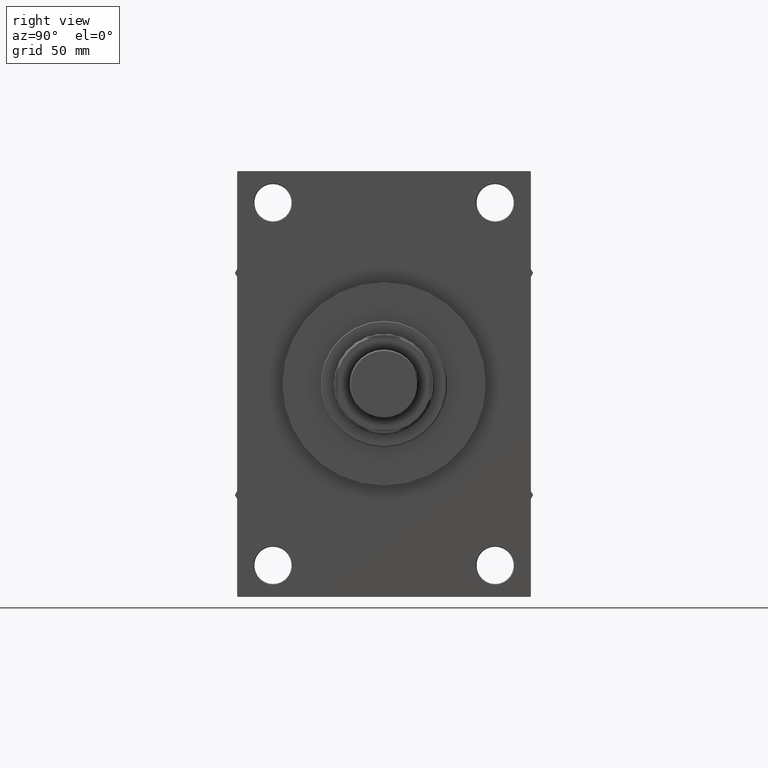
[diagram: clean part render]
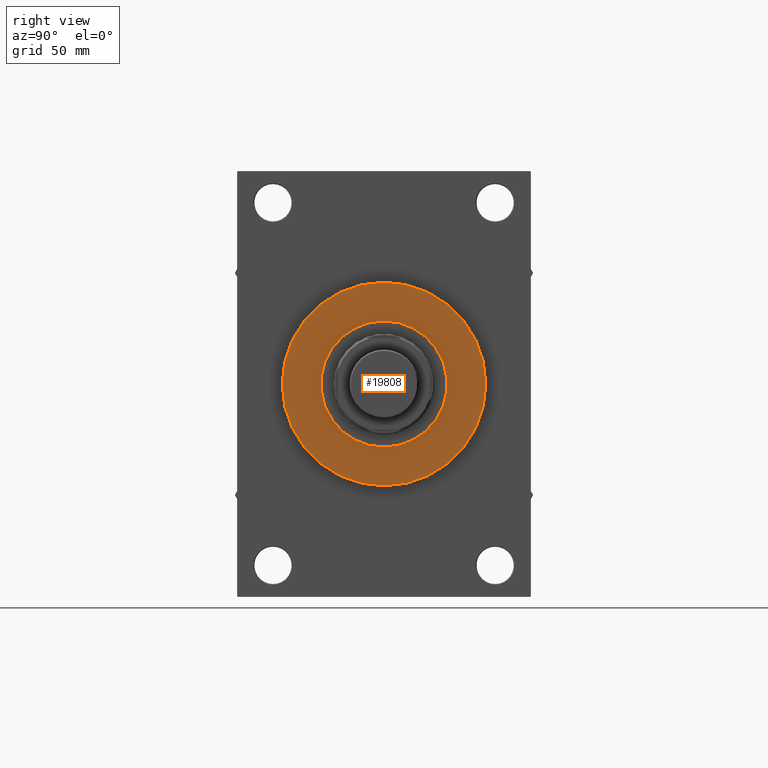
[diagram: same view with one face highlighted and labeled with its STEP entity id]
A machine part, right view. The second image highlights one B-rep face of the part: STEP entity #19808.
In plain terms, the highlighted planar face has unit normal (1, -0, -0).
Its self-contained STEP definition (entity closure, byte-faithful):
#105 = CARTESIAN_POINT ( 'NONE',  ( 0.000000000000000000, 0.000000000000000000, 43.25999999999999801 ) ) ;
#6022 = ORIENTED_EDGE ( 'NONE', *, *, #14026, .F. ) ;
#6733 = AXIS2_PLACEMENT_3D ( 'NONE', #20142, #31813, #13542 ) ;
#7923 = FACE_BOUND ( 'NONE', #18283, .T. ) ;
#9098 = CARTESIAN_POINT ( 'NONE',  ( -44.00000000000000000, 0.000000000000000000, 43.25999999999999801 ) ) ;
#10318 = CARTESIAN_POINT ( 'NONE',  ( 0.000000000000000000, 0.000000000000000000, 43.25999999999999801 ) ) ;
#11304 = CARTESIAN_POINT ( 'NONE',  ( 44.00000000000000000, 5.388445916248353619E-15, 43.25999999999999801 ) ) ;
#12476 = ORIENTED_EDGE ( 'NONE', *, *, #34721, .T. ) ;
#13542 = DIRECTION ( 'NONE',  ( 1.000000000000000000, 0.000000000000000000, 0.000000000000000000 ) ) ;
#14026 = EDGE_CURVE ( 'NONE', #38176, #22125, #24710, .T. ) ;
#14221 = DIRECTION ( 'NONE',  ( 0.000000000000000000, 0.000000000000000000, 1.000000000000000000 ) ) ;
#14930 = ORIENTED_EDGE ( 'NONE', *, *, #29702, .T. ) ;
#14984 = DIRECTION ( 'NONE',  ( 0.000000000000000000, 0.000000000000000000, 1.000000000000000000 ) ) ;
#15630 = CIRCLE ( 'NONE', #31923, 44.00000000000000000 ) ;
#15669 = AXIS2_PLACEMENT_3D ( 'NONE', #43045, #24100, #38682 ) ;
#18283 = EDGE_LOOP ( 'NONE', ( #21946, #6022 ) ) ;
#18548 = DIRECTION ( 'NONE',  ( 1.000000000000000000, 0.000000000000000000, 0.000000000000000000 ) ) ;
#19297 = CARTESIAN_POINT ( 'NONE',  ( 71.00000000000001421, 8.694992273946208141E-15, 43.25999999999999801 ) ) ;
#19566 = CIRCLE ( 'NONE', #15669, 71.00000000000001421 ) ;
#19808 = ADVANCED_FACE ( 'NONE', ( #7923, #44194 ), #47829, .T. ) ;
#20142 = CARTESIAN_POINT ( 'NONE',  ( 0.000000000000000000, 0.000000000000000000, 43.25999999999999801 ) ) ;
#21211 = EDGE_LOOP ( 'NONE', ( #14930, #12476 ) ) ;
#21946 = ORIENTED_EDGE ( 'NONE', *, *, #24653, .F. ) ;
#22125 = VERTEX_POINT ( 'NONE', #9098 ) ;
#24100 = DIRECTION ( 'NONE',  ( 0.000000000000000000, 0.000000000000000000, 1.000000000000000000 ) ) ;
#24653 = EDGE_CURVE ( 'NONE', #22125, #38176, #15630, .T. ) ;
#24710 = CIRCLE ( 'NONE', #31688, 44.00000000000000000 ) ;
#25147 = CARTESIAN_POINT ( 'NONE',  ( 0.000000000000000000, 0.000000000000000000, 43.25999999999999801 ) ) ;
#25183 = DIRECTION ( 'NONE',  ( 1.000000000000000000, 0.000000000000000000, 0.000000000000000000 ) ) ;
#29702 = EDGE_CURVE ( 'NONE', #41802, #47855, #19566, .T. ) ;
#31688 = AXIS2_PLACEMENT_3D ( 'NONE', #10318, #14221, #25183 ) ;
#31813 = DIRECTION ( 'NONE',  ( 0.000000000000000000, 0.000000000000000000, 1.000000000000000000 ) ) ;
#31923 = AXIS2_PLACEMENT_3D ( 'NONE', #25147, #37026, #18548 ) ;
#33963 = DIRECTION ( 'NONE',  ( 1.000000000000000000, 0.000000000000000000, -0.000000000000000000 ) ) ;
#34721 = EDGE_CURVE ( 'NONE', #47855, #41802, #40152, .T. ) ;
#36399 = AXIS2_PLACEMENT_3D ( 'NONE', #105, #14984, #33963 ) ;
#37026 = DIRECTION ( 'NONE',  ( 0.000000000000000000, 0.000000000000000000, 1.000000000000000000 ) ) ;
#38176 = VERTEX_POINT ( 'NONE', #11304 ) ;
#38682 = DIRECTION ( 'NONE',  ( 1.000000000000000000, 0.000000000000000000, 0.000000000000000000 ) ) ;
#40152 = CIRCLE ( 'NONE', #6733, 71.00000000000001421 ) ;
#41802 = VERTEX_POINT ( 'NONE', #44360 ) ;
#43045 = CARTESIAN_POINT ( 'NONE',  ( 0.000000000000000000, 0.000000000000000000, 43.25999999999999801 ) ) ;
#44194 = FACE_OUTER_BOUND ( 'NONE', #21211, .T. ) ;
#44360 = CARTESIAN_POINT ( 'NONE',  ( -71.00000000000001421, 0.000000000000000000, 43.25999999999999801 ) ) ;
#47829 = PLANE ( 'NONE',  #36399 ) ;
#47855 = VERTEX_POINT ( 'NONE', #19297 ) ;